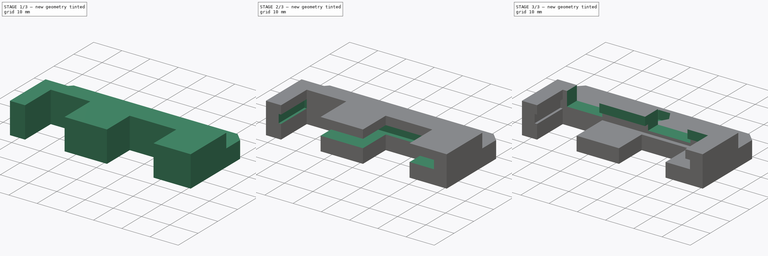
[diagram: build sequence overview — one tinted view per stage of 3, left to right]
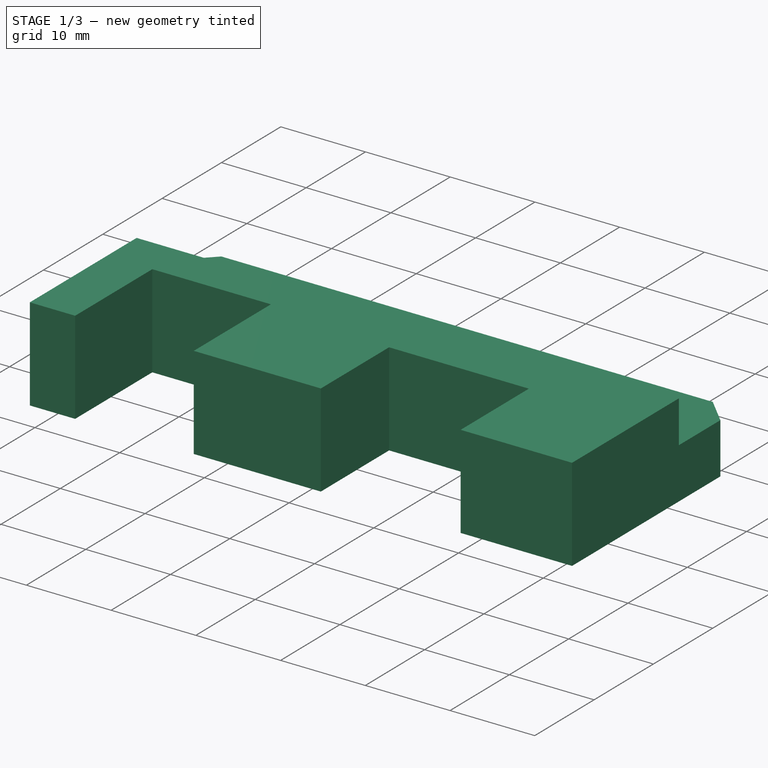
[diagram: stage 1 of 3 — iso view after this stage's code; geometry added in this stage tinted green]
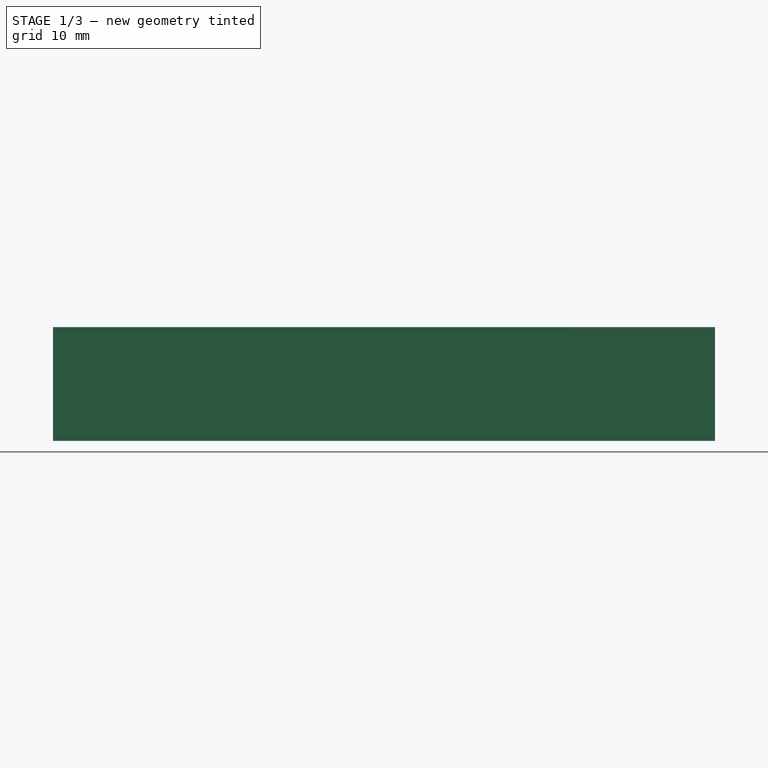
[diagram: stage 1 of 3 — front view after this stage's code; geometry added in this stage tinted green]
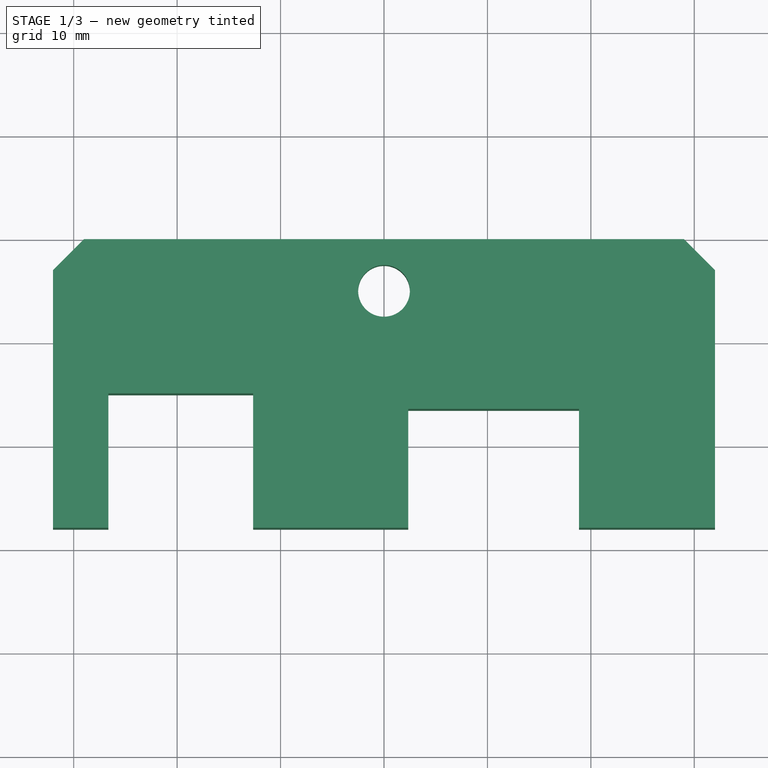
[diagram: stage 1 of 3 — top view after this stage's code; geometry added in this stage tinted green]
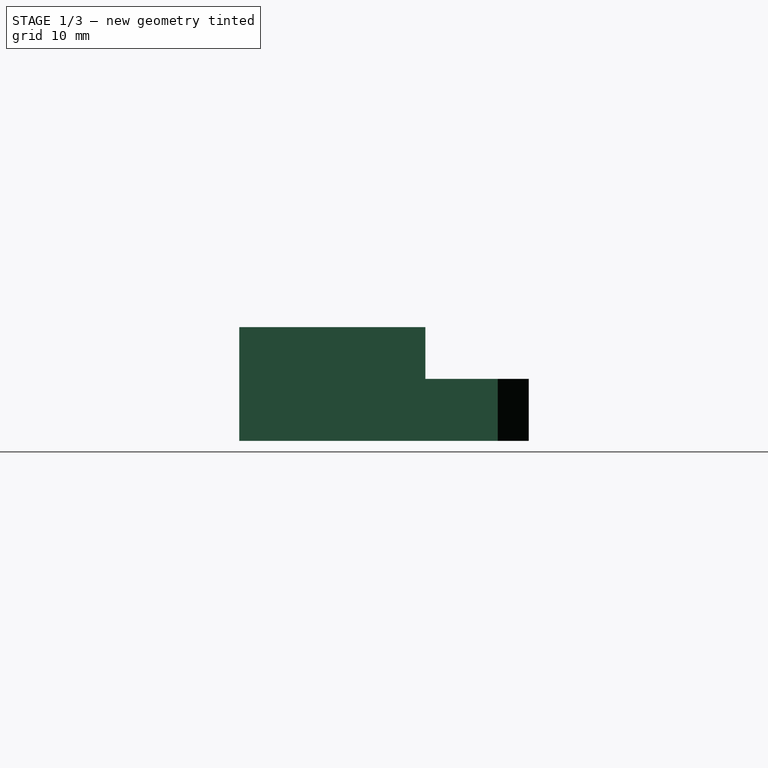
[diagram: stage 1 of 3 — right view after this stage's code; geometry added in this stage tinted green]
FCSTD DOCUMENT  (FreeCAD 0.19R24267 +148 (Git))
Label: ArduinoSupport2
License: All rights reserved
LicenseURL: http://en.wikipedia.org/wiki/All_rights_reserved
objects: Sketcher::SketchObject×5, PartDesign::Pocket×4, PartDesign::Pad×1, PartDesign::Body×1
note: 16 computed .brp shape members not serialized (recipe doc carries the construction recipe); baked Part::Feature solids carry a one-line shape summary decoded from their .brp

FEATURE [Sketcher::SketchObject] Sketch
  FullyConstrained = true
  MapMode = 5
  Support = -> [XY_Plane]
  sketch-geometry (15):
    g0: LineSegment StartX=-29 StartY=0 StartZ=0 EndX=29 EndY=0 EndZ=0
    g1: LineSegment StartX=29 StartY=0 StartZ=0 EndX=32 EndY=-3 EndZ=0
    g2: LineSegment StartX=32 StartY=-3 StartZ=0 EndX=32 EndY=-28 EndZ=0
    g3: LineSegment StartX=32 StartY=-28 StartZ=0 EndX=18.85 EndY=-28 EndZ=0
    g4: LineSegment StartX=18.85 StartY=-28 StartZ=0 EndX=18.85 EndY=-16.5 EndZ=0
    g5: LineSegment StartX=18.85 StartY=-16.5 StartZ=0 EndX=2.35 EndY=-16.5 EndZ=0
    g6: LineSegment StartX=2.35 StartY=-16.5 StartZ=0 EndX=2.35 EndY=-28 EndZ=0
    g7: LineSegment StartX=2.35 StartY=-28 StartZ=0 EndX=-12.65 EndY=-28 EndZ=0
    g8: LineSegment StartX=-12.65 StartY=-28 StartZ=0 EndX=-12.65 EndY=-15 EndZ=0
    g9: LineSegment StartX=-12.65 StartY=-15 StartZ=0 EndX=-26.65 EndY=-15 EndZ=0
    g10: LineSegment StartX=-26.65 StartY=-15 StartZ=0 EndX=-26.65 EndY=-28 EndZ=0
    g11: LineSegment StartX=-26.65 StartY=-28 StartZ=0 EndX=-32 EndY=-28 EndZ=0
    g12: LineSegment StartX=-32 StartY=-28 StartZ=0 EndX=-32 EndY=-3 EndZ=0
    g13: LineSegment StartX=-32 StartY=-3 StartZ=0 EndX=-29 EndY=0 EndZ=0
    g14: Circle CenterX=0 CenterY=-5 CenterZ=0 NormalX=0 NormalY=0 NormalZ=1 AngleXU=0 Radius=2.5
  constraints (42):
    c: PointOnObject(g0,g-1)
    c: Coincident(g0,g1)
    c: Coincident(g1,g2)
    c: Vertical(g2)
    c: Coincident(g2,g3)
    c: Horizontal(g3)
    c: Coincident(g3,g4)
    c: Coincident(g4,g5)
    c: Horizontal(g5)
    c: Coincident(g5,g6)
    c: Vertical(g6)
    c: Coincident(g6,g7)
    c: Horizontal(g7)
    c: Coincident(g7,g8)
    c: Vertical(g8)
    c: Coincident(g8,g9)
    c: Horizontal(g9)
    c: Coincident(g9,g10)
    c: Vertical(g10)
    c: Coincident(g10,g11)
    c: Horizontal(g11)
    c: Coincident(g11,g12)
    c: Coincident(g12,g13)
    c: Coincident(g13,g0)
    c: Vertical(g4)
    c: Symmetric(g0,g0,g-2)
    c: Symmetric(g1,g12,g-2)
    c: Angle(g13,g0) = 2.35619
    c: DistanceX(g12,g0) = 3
    c: DistanceX(g12,g1) = 64
    c: DistanceY(g2,g0) = 28
    c: PointOnObject(g6,g3)
    c: Symmetric(g2,g11,g-2)
    c: DistanceX(g3,g2) = 13.15
    c: DistanceX(g6,g3) = 16.5
    c: DistanceX(g7,g6) = 15
    c: DistanceX(g10,g7) = 14
    c: DistanceY(g3,g4) = 11.5
    c: DistanceY(g7,g8) = 13
    c: PointOnObject(g14,g-2)
    c: Diameter(g14) = 5
    c: DistanceY(g14,g-1) = 5
FEATURE [PartDesign::Pad] Pad
  Direction = (1,1,1)
  Length = 11
  Length2 = 100
  Profile = -> Sketch
  Refine = true
  Type = 0
FEATURE [Sketcher::SketchObject] Sketch001
  FullyConstrained = false
  MapMode = 5
  Placement = pos=(0,0,11) rot=(0,0,1;0rad)
  Support = -> [Pad]
  sketch-geometry (4):
    g0: LineSegment StartX=-46.5426 StartY=-10 StartZ=0 EndX=46.5426 EndY=-10 EndZ=0
    g1: LineSegment StartX=46.5426 StartY=-10 StartZ=0 EndX=46.5426 EndY=0 EndZ=0
    g2: LineSegment StartX=46.5426 StartY=0 StartZ=0 EndX=-46.5426 EndY=0 EndZ=0
    g3: LineSegment StartX=-46.5426 StartY=0 StartZ=0 EndX=-46.5426 EndY=-10 EndZ=0
  constraints (10):
    c: Coincident(g0,g1)
    c: Coincident(g1,g2)
    c: Coincident(g2,g3)
    c: Coincident(g3,g0)
    c: Horizontal(g0)
    c: Vertical(g1)
    c: Vertical(g3)
    c: PointOnObject(g1,g-1)
    c: Symmetric(g1,g2,g-2)
    c: DistanceY(g0,g1) = 10
FEATURE [PartDesign::Pocket] Pocket
  BaseFeature = -> Pad
  Length = 5
  Length2 = 100
  Profile = -> Sketch001
  Refine = true
  Type = 0
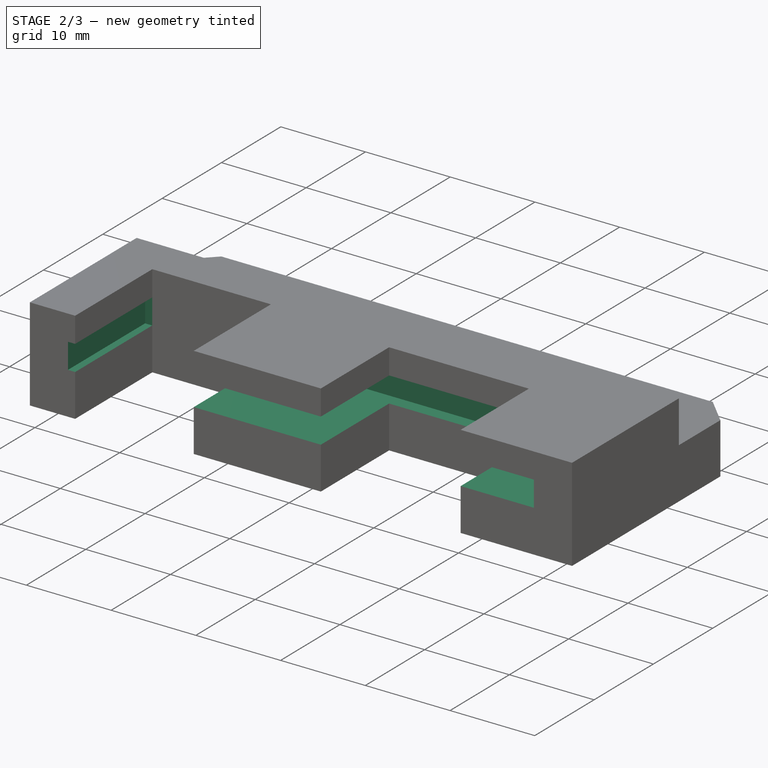
[diagram: stage 2 of 3 — iso view after this stage's code; geometry added in this stage tinted green]
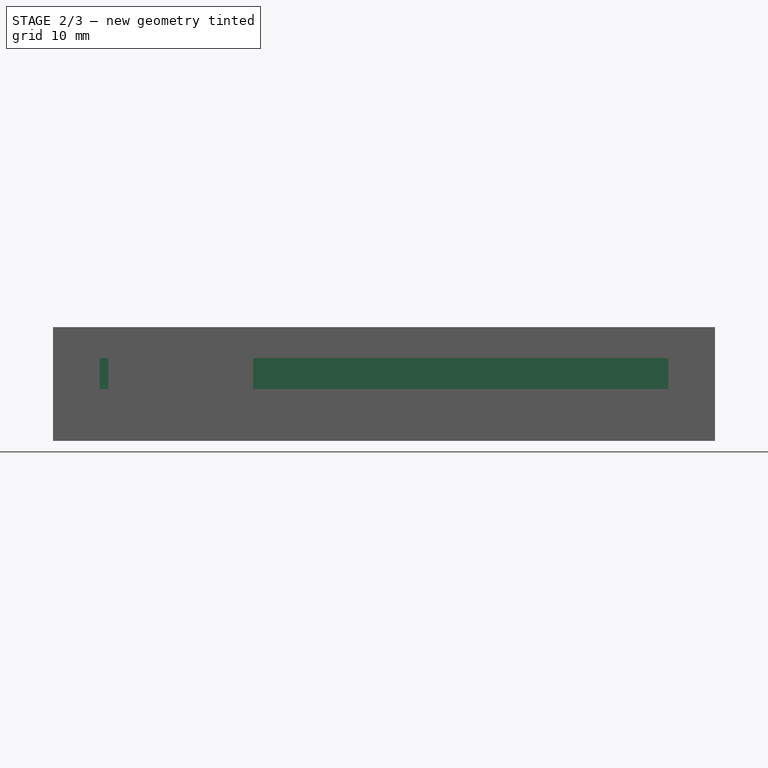
[diagram: stage 2 of 3 — front view after this stage's code; geometry added in this stage tinted green]
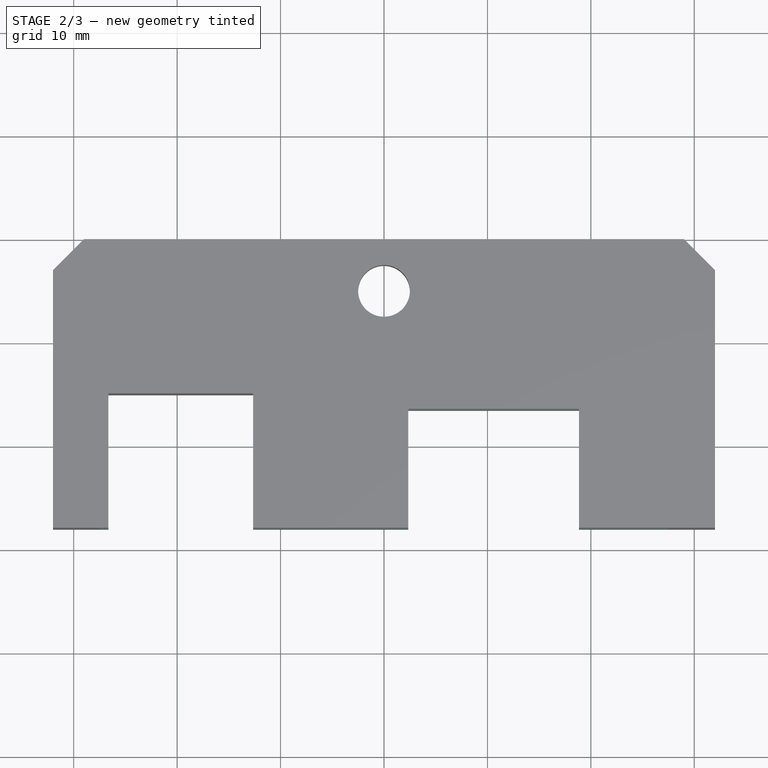
[diagram: stage 2 of 3 — top view after this stage's code; geometry added in this stage tinted green]
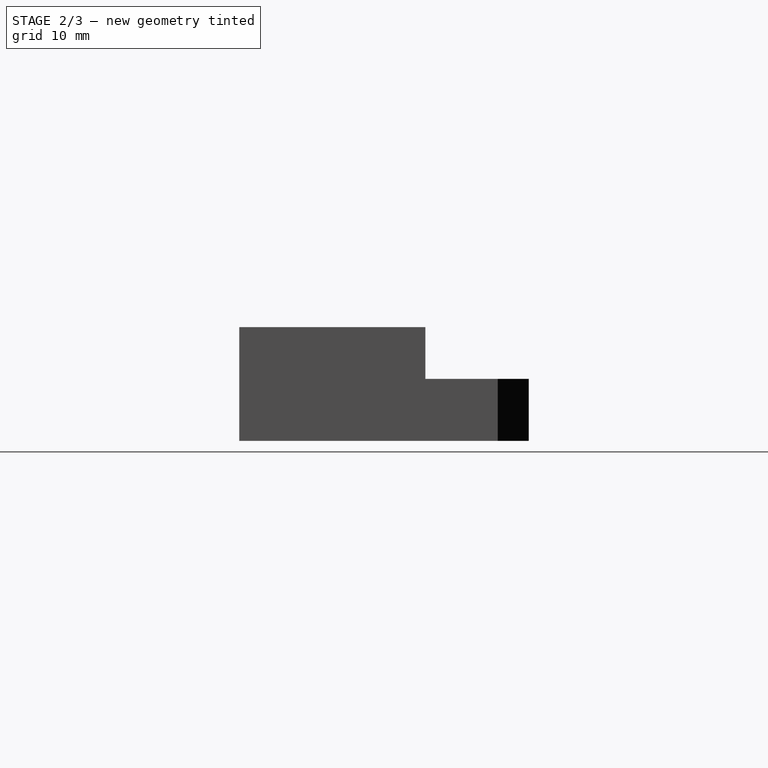
[diagram: stage 2 of 3 — right view after this stage's code; geometry added in this stage tinted green]
FEATURE [Sketcher::SketchObject] Sketch002
  FullyConstrained = true
  MapMode = 5
  Placement = pos=(0,-28,0) rot=(1,0,0;1.5708rad)
  Support = -> [Pocket]
  sketch-geometry (4):
    g0: LineSegment StartX=-27.5 StartY=5 StartZ=0 EndX=27.5 EndY=5 EndZ=0
    g1: LineSegment StartX=27.5 StartY=5 StartZ=0 EndX=27.5 EndY=8 EndZ=0
    g2: LineSegment StartX=27.5 StartY=8 StartZ=0 EndX=-27.5 EndY=8 EndZ=0
    g3: LineSegment StartX=-27.5 StartY=8 StartZ=0 EndX=-27.5 EndY=5 EndZ=0
  constraints (11):
    c: Coincident(g0,g1)
    c: Coincident(g1,g2)
    c: Coincident(g2,g3)
    c: Coincident(g3,g0)
    c: Horizontal(g2)
    c: Vertical(g1)
    c: Vertical(g3)
    c: DistanceX(g2,g1) = 55
    c: Symmetric(g0,g0,g-2)
    c: DistanceY(g-1,g0) = 5
    c: DistanceY(g0,g1) = 3
FEATURE [PartDesign::Pocket] Pocket001
  BaseFeature = -> Pocket
  Length = 13
  Length2 = 100
  Profile = -> Sketch002
  Refine = true
  Type = 0
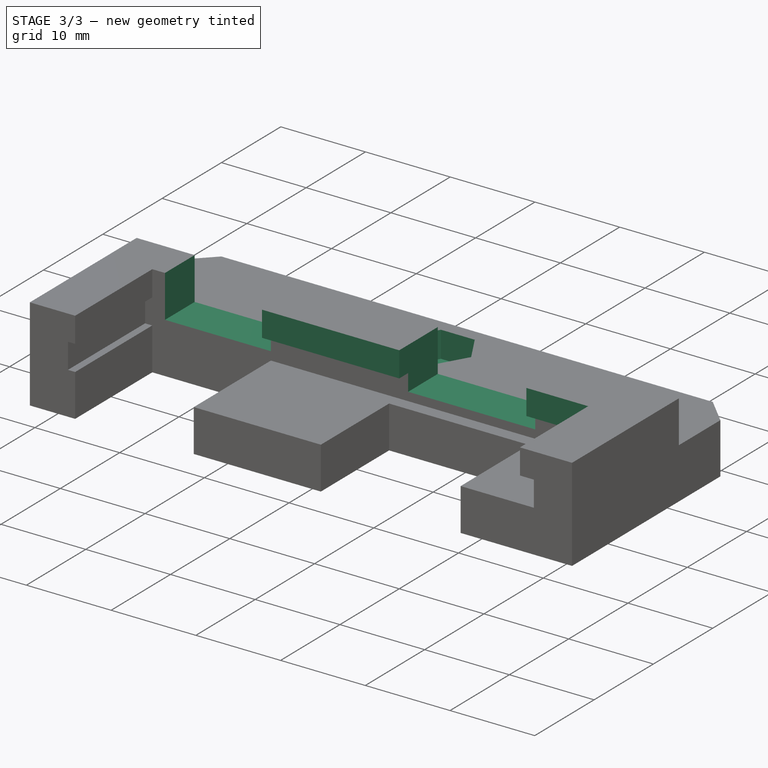
[diagram: stage 3 of 3 — iso view after this stage's code; geometry added in this stage tinted green]
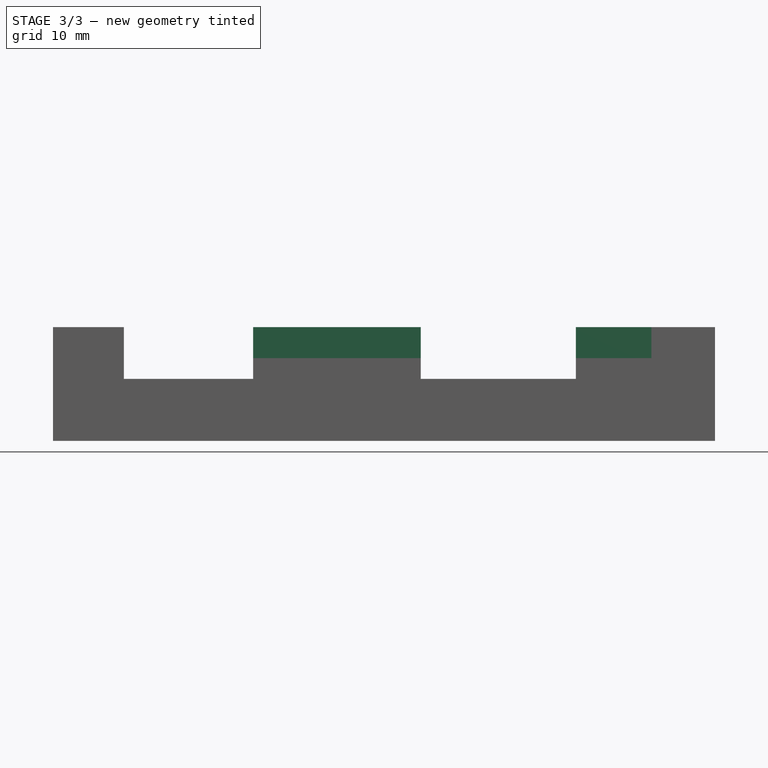
[diagram: stage 3 of 3 — front view after this stage's code; geometry added in this stage tinted green]
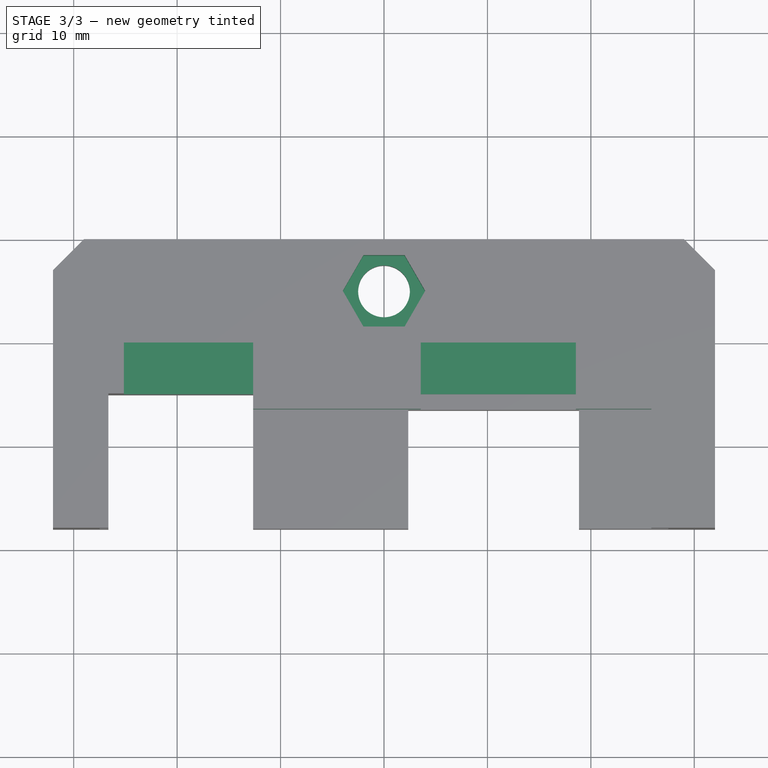
[diagram: stage 3 of 3 — top view after this stage's code; geometry added in this stage tinted green]
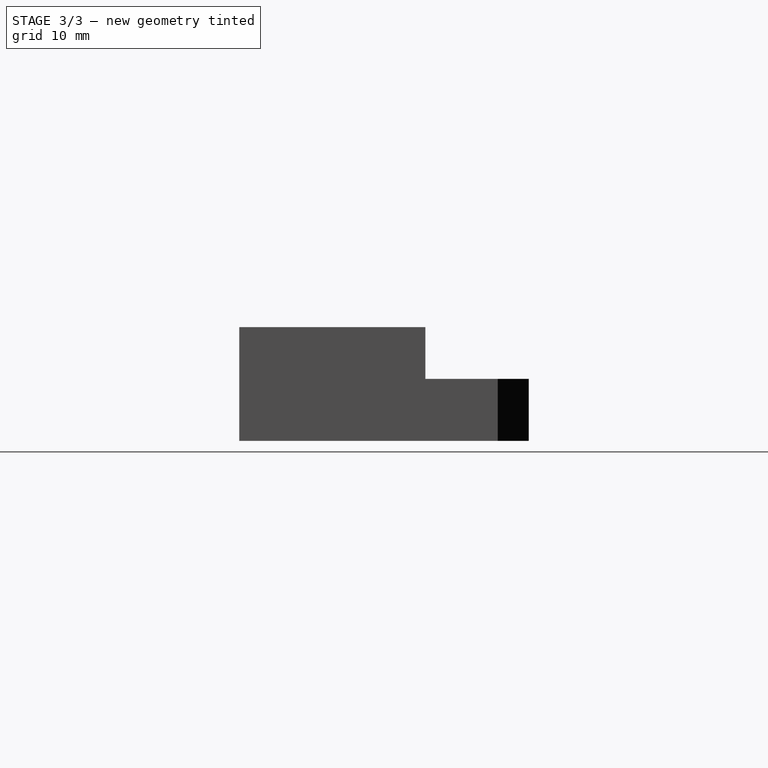
[diagram: stage 3 of 3 — right view after this stage's code; geometry added in this stage tinted green]
FEATURE [Sketcher::SketchObject] Sketch003
  ExternalGeometry = -> [Pocket001]
  FullyConstrained = true
  MapMode = 5
  Placement = pos=(0,0,6) rot=(0,0,1;0rad)
  Support = -> [Pocket001]
  sketch-geometry (7):
    g0: LineSegment StartX=3.98372 StartY=-5 StartZ=0 EndX=1.99186 EndY=-1.55 EndZ=0
    g1: LineSegment StartX=1.99186 StartY=-1.55 StartZ=0 EndX=-1.99186 EndY=-1.55 EndZ=0
    g2: LineSegment StartX=-1.99186 StartY=-1.55 StartZ=0 EndX=-3.98372 EndY=-5 EndZ=0
    g3: LineSegment StartX=-3.98372 StartY=-5 StartZ=0 EndX=-1.99186 EndY=-8.45 EndZ=0
    g4: LineSegment StartX=-1.99186 StartY=-8.45 StartZ=0 EndX=1.99186 EndY=-8.45 EndZ=0
    g5: LineSegment StartX=1.99186 StartY=-8.45 StartZ=0 EndX=3.98372 EndY=-5 EndZ=0
    g6: Circle CenterX=0 CenterY=-5 CenterZ=0 NormalX=0 NormalY=0 NormalZ=1 AngleXU=0 Radius=3.98372
  constraints (16):
    c: Coincident(g0,g1)
    c: Coincident(g1,g2)
    c: Coincident(g2,g3)
    c: Coincident(g3,g4)
    c: Coincident(g4,g5)
    c: Coincident(g5,g0)
    c: Equal(g0, g1-g5) x5
    c: PointOnObject(g0,g6)
    c: PointOnObject(g1,g6)
    c: PointOnObject(g2,g6)
    c: PointOnObject(g3,g6)
    c: PointOnObject(g4,g6)
    c: PointOnObject(g5,g6)
    c: Coincident(g6,g-3)
    c: Horizontal(g1)
    c: Distance(g0,g2) = 6.9
FEATURE [PartDesign::Pocket] Pocket002  label="HoleForNut"
  BaseFeature = -> Pocket001
  Length = 3.1
  Length2 = 100
  Profile = -> Sketch003
  Refine = true
  Type = 0
FEATURE [Sketcher::SketchObject] Sketch004
  ExternalGeometry = -> [Pocket002]
  FullyConstrained = false
  MapMode = 5
  Placement = pos=(0,0,11) rot=(0,0,1;0rad)
  Support = -> [Pocket002]
  sketch-geometry (10):
    g0: LineSegment StartX=-25.15 StartY=-5.83869 StartZ=0 EndX=-12.65 EndY=-5.83869 EndZ=0
    g1: LineSegment StartX=-12.65 StartY=-5.83869 StartZ=0 EndX=-12.65 EndY=-16.5 EndZ=0
    g2: LineSegment StartX=-12.65 StartY=-16.5 StartZ=0 EndX=3.55 EndY=-16.5 EndZ=0
    g3: LineSegment StartX=3.55 StartY=-16.5 StartZ=0 EndX=3.55 EndY=-5.83869 EndZ=0
    g4: LineSegment StartX=3.55 StartY=-5.83869 StartZ=0 EndX=18.55 EndY=-5.83869 EndZ=0
    g5: LineSegment StartX=18.55 StartY=-5.83869 StartZ=0 EndX=18.55 EndY=-16.5 EndZ=0
    g6: LineSegment StartX=18.55 StartY=-16.5 StartZ=0 EndX=25.85 EndY=-16.5 EndZ=0
    g7: LineSegment StartX=25.85 StartY=-16.5 StartZ=0 EndX=25.85 EndY=-33.5159 EndZ=0
    g8: LineSegment StartX=25.85 StartY=-33.5159 StartZ=0 EndX=-25.15 EndY=-33.5159 EndZ=0
    g9: LineSegment StartX=-25.15 StartY=-33.5159 StartZ=0 EndX=-25.15 EndY=-5.83869 EndZ=0
  constraints (28):
    c: Horizontal(g0)
    c: Coincident(g0,g1)
    c: Vertical(g1)
    c: Coincident(g1,g2)
    c: Horizontal(g2)
    c: Coincident(g2,g3)
    c: Vertical(g3)
    c: Coincident(g3,g4)
    c: Horizontal(g4)
    c: Coincident(g4,g5)
    c: Vertical(g5)
    c: Coincident(g5,g6)
    c: Horizontal(g6)
    c: Coincident(g6,g7)
    c: Vertical(g7)
    c: Horizontal(g8)
    c: PointOnObject(g0,g4)
    c: Coincident(g8,g7)
    c: Coincident(g9,g0)
    c: Vertical(g9)
    c: Coincident(g8,g9)
    c: DistanceX(g-3,g0) = 1.5
    c: DistanceX(g0,g0) = 12.5
    c: DistanceX(g1,g2) = 16.2
    c: DistanceX(g3,g4) = 15
    c: DistanceX(g5,g6) = 7.3
    c: PointOnObject(g5,g-4)
    c: PointOnObject(g-4,g2)
FEATURE [PartDesign::Pocket] Pocket003
  BaseFeature = -> Pocket002
  Length = 5
  Length2 = 100
  Profile = -> Sketch004
  Refine = true
  Type = 0
FEATURE [PartDesign::Body] Body
  Group = -> [Sketch,Pad,Sketch001,Pocket,Sketch002,Pocket001,Sketch003,Pocket002,Sketch004,Pocket003]
  Origin = -> Origin
  Tip = -> Pocket003
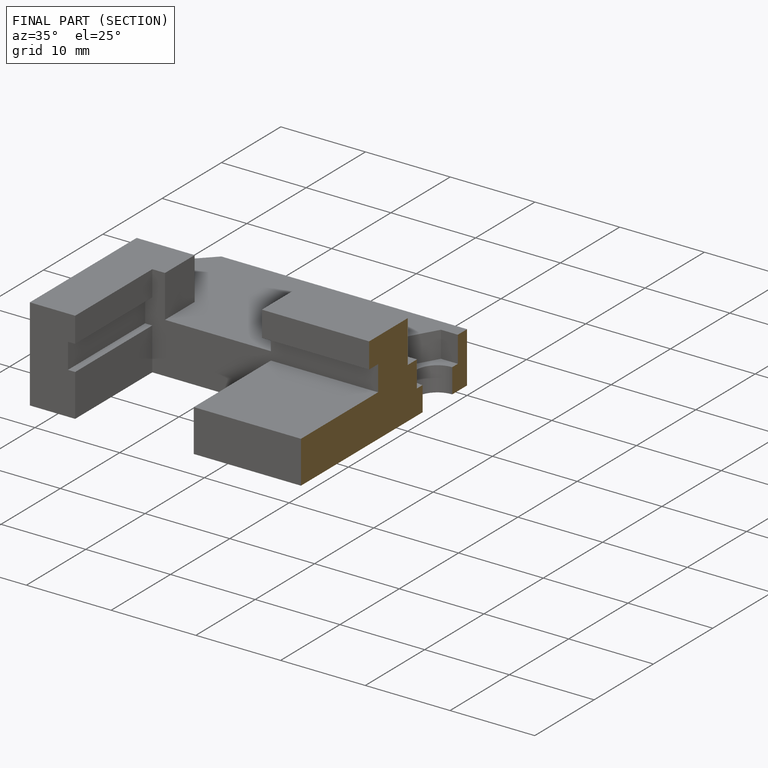
[diagram: finished part — half-section view (interior)]
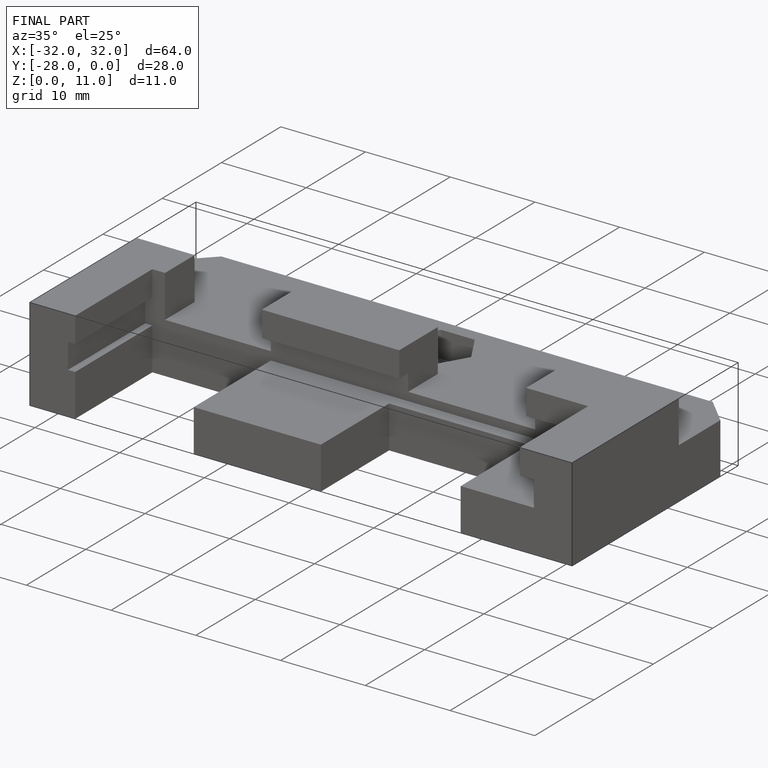
[diagram: finished part — iso view with bounding-box wireframe]
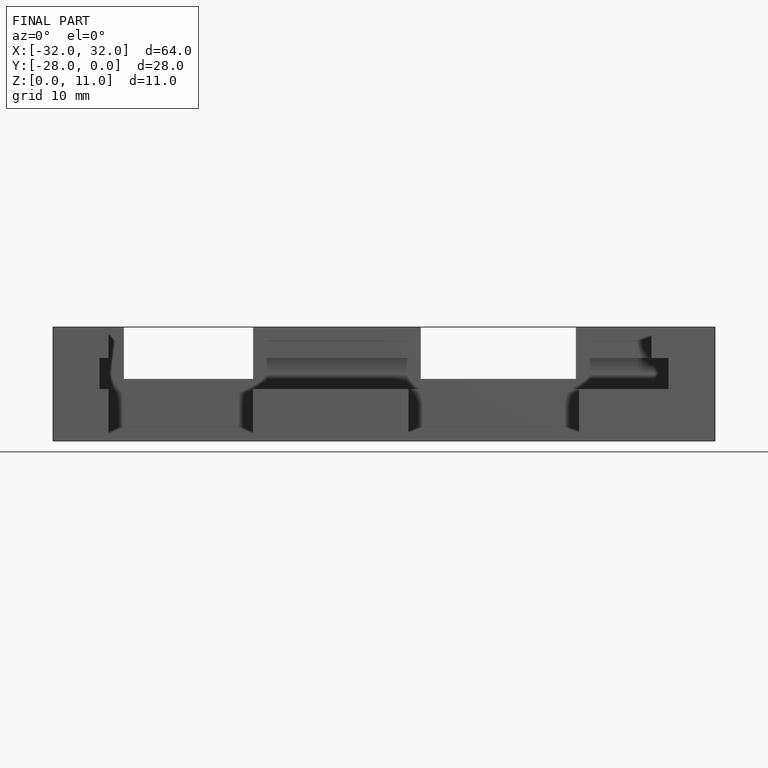
[diagram: finished part — front view with bounding-box wireframe]
